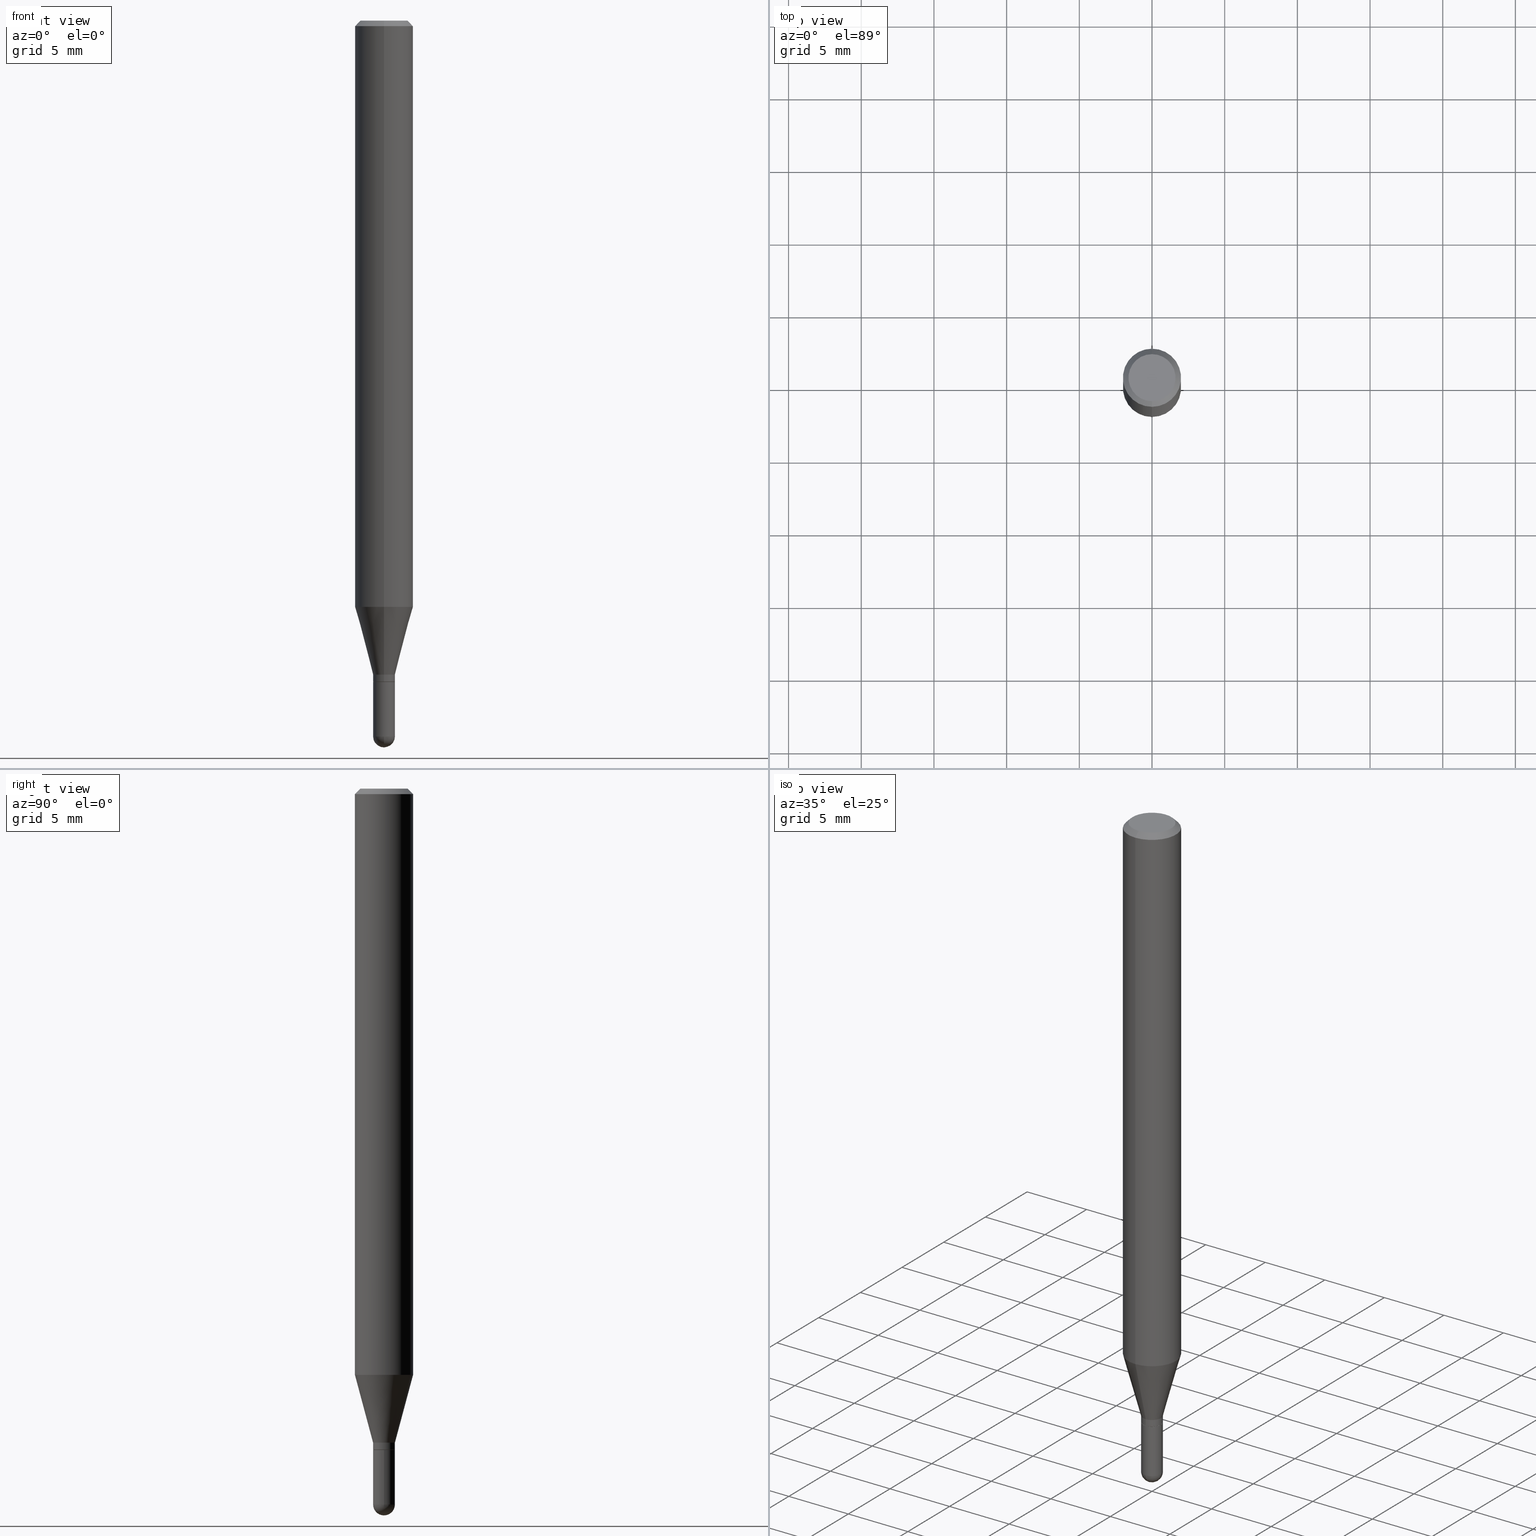
[diagram: canonical four-view strip — front | top / right | iso, engineering-drawing reading convention]
A machine part, canonical four-view strip (front | top / right | iso — engineering-drawing reading convention). The complete STEP part file that produces these views, byte-faithful:
ISO-10303-21;
HEADER;
FILE_DESCRIPTION (( 'STEP AP203' ),
    '1' );
FILE_NAME ('03020.STEP',
    '2024-03-08T18:00:56',
    ( '' ),
    ( '' ),
    'SwSTEP 2.0',
    'SolidWorks 2023',
    '' );
FILE_SCHEMA (( 'CONFIG_CONTROL_DESIGN' ));
ENDSEC;

DATA;
#1 = EDGE_CURVE ( 'NONE', #158, #68, #137, .T. ) ;
#2 = ADVANCED_FACE ( 'NONE', ( #413 ), #448, .F. ) ;
#3 = AXIS2_PLACEMENT_3D ( 'NONE', #168, #127, #38 ) ;
#4 = AXIS2_PLACEMENT_3D ( 'NONE', #455, #98, #254 ) ;
#5 = LOCAL_TIME ( 13, 0, 56.00000000000000000, #298 ) ;
#6 = DIRECTION ( 'NONE',  ( -2.445468806185136597E-29, 3.491481338843145583E-15, 1.000000000000000000 ) ) ;
#7 = PERSON_AND_ORGANIZATION_ROLE ( 'creator' ) ;
#8 = ORIENTED_EDGE ( 'NONE', *, *, #415, .T. ) ;
#9 = FACE_OUTER_BOUND ( 'NONE', #244, .T. ) ;
#10 = AXIS2_PLACEMENT_3D ( 'NONE', #186, #64, #511 ) ;
#11 = SECURITY_CLASSIFICATION ( '', '', #246 ) ;
#12 = DATE_TIME_ROLE ( 'classification_date' ) ;
#13 = ADVANCED_FACE ( 'NONE', ( #145 ), #91, .T. ) ;
#14 = PERSON_AND_ORGANIZATION_ROLE ( 'design_supplier' ) ;
#15 = DIRECTION ( 'NONE',  ( -1.000000000000000000, 6.982962677686265922E-15, -4.883557194083112901E-29 ) ) ;
#16 = EDGE_LOOP ( 'NONE', ( #138, #51, #25, #512 ) ) ;
#17 = DIRECTION ( 'NONE',  ( -2.445486363114738978E-29, 3.491456196320676645E-15, 1.000000000000000000 ) ) ;
#18 = ORIENTED_EDGE ( 'NONE', *, *, #146, .F. ) ;
#19 = CC_DESIGN_PERSON_AND_ORGANIZATION_ASSIGNMENT ( #369, #7, ( #433 ) ) ;
#20 = CIRCLE ( 'NONE', #280, 0.02954999999999998253 ) ;
#21 = ORGANIZATION ( 'UNSPECIFIED', 'UNSPECIFIED', '' ) ;
#22 = LINE ( 'NONE', #184, #72 ) ;
#23 = CYLINDRICAL_SURFACE ( 'NONE', #175, 0.02954999999999992008 ) ;
#24 = DIRECTION ( 'NONE',  ( -2.445486363114738978E-29, 3.491456196320676645E-15, 1.000000000000000000 ) ) ;
#25 = ORIENTED_EDGE ( 'NONE', *, *, #1, .T. ) ;
#26 = MECHANICAL_CONTEXT ( 'NONE', #209, 'mechanical' ) ;
#27 = FACE_OUTER_BOUND ( 'NONE', #405, .T. ) ;
#28 = ORIENTED_EDGE ( 'NONE', *, *, #146, .T. ) ;
#29 = PERSON_AND_ORGANIZATION ( #494, #21 ) ;
#30 = AXIS2_PLACEMENT_3D ( 'NONE', #71, #6, #332 ) ;
#31 = LINE ( 'NONE', #466, #431 ) ;
#32 = ORIENTED_EDGE ( 'NONE', *, *, #234, .T. ) ;
#33 = ORIENTED_EDGE ( 'NONE', *, *, #314, .F. ) ;
#34 = EDGE_CURVE ( 'NONE', #316, #68, #443, .T. ) ;
#35 = CYLINDRICAL_SURFACE ( 'NONE', #204, 0.02954999999999992008 ) ;
#36 = MANIFOLD_SOLID_BREP ( 'Body-Move/Copy2[1]', #290 ) ;
#37 = VECTOR ( 'NONE', #108, 39.37007874015748143 ) ;
#38 = DIRECTION ( 'NONE',  ( 6.982962677686264344E-15, 1.000000000000000000, -3.496114991891765576E-15 ) ) ;
#39 = EDGE_CURVE ( 'NONE', #239, #109, #174, .T. ) ;
#40 = DIRECTION ( 'NONE',  ( -1.807323732225332900E-15, -0.2588190451025185190, 0.9659258262890689783 ) ) ;
#41 = CYLINDRICAL_SURFACE ( 'NONE', #247, 0.07875000000000000056 ) ;
#42 = CARTESIAN_POINT ( 'NONE',  ( 3.668229544672112864E-31, -5.237184294481020589E-17, -0.01500000000000001679 ) ) ;
#43 = ORIENTED_EDGE ( 'NONE', *, *, #380, .F. ) ;
#44 = CARTESIAN_POINT ( 'NONE',  ( 4.975360907851465623E-16, 0.06374999999999998723, -2.394024591375393642E-16 ) ) ;
#45 = PERSON_AND_ORGANIZATION ( #494, #21 ) ;
#46 = AXIS2_PLACEMENT_3D ( 'NONE', #172, #130, #452 ) ;
#47 = CALENDAR_DATE ( 2024, 8, 3 ) ;
#48 = ADVANCED_FACE ( 'NONE', ( #468 ), #113, .T. ) ;
#49 = EDGE_CURVE ( 'NONE', #316, #222, #223, .T. ) ;
#50 = PERSON_AND_ORGANIZATION ( #494, #21 ) ;
#51 = ORIENTED_EDGE ( 'NONE', *, *, #303, .T. ) ;
#52 = CIRCLE ( 'NONE', #507, 0.06374999999999998723 ) ;
#53 = EDGE_CURVE ( 'NONE', #289, #451, #490, .T. ) ;
#54 = DIRECTION ( 'NONE',  ( -2.445486363114738978E-29, 3.491456196320676251E-15, 1.000000000000000000 ) ) ;
#55 = ADVANCED_FACE ( 'NONE', ( #352 ), #237, .T. ) ;
#56 = DIRECTION ( 'NONE',  ( -2.445468806185136597E-29, 3.491481338843145583E-15, 1.000000000000000000 ) ) ;
#57 = CYLINDRICAL_SURFACE ( 'NONE', #173, 0.07875000000000000056 ) ;
#58 = AXIS2_PLACEMENT_3D ( 'NONE', #96, #206, #368 ) ;
#59 = AXIS2_PLACEMENT_3D ( 'NONE', #42, #203, #321 ) ;
#60 = LENGTH_MEASURE_WITH_UNIT ( LENGTH_MEASURE( 0.02539999999999999897 ), #110 );
#61 = DIRECTION ( 'NONE',  ( 6.982962677686265922E-15, 1.000000000000000000, 0.000000000000000000 ) ) ;
#62 = ORIENTED_EDGE ( 'NONE', *, *, #214, .T. ) ;
#63 = EDGE_CURVE ( 'NONE', #269, #316, #79, .T. ) ;
#64 = DIRECTION ( 'NONE',  ( -2.445468806185136597E-29, 3.491481338843145583E-15, 1.000000000000000000 ) ) ;
#65 = ORIENTED_EDGE ( 'NONE', *, *, #410, .T. ) ;
#66 = CARTESIAN_POINT ( 'NONE',  ( 0.000000000000000000, 0.000000000000000000, 0.000000000000000000 ) ) ;
#67 = CARTESIAN_POINT ( 'NONE',  ( 0.02954999999999999988, -6.718395679235450664E-15, -1.938949999999999729 ) ) ;
#68 = VERTEX_POINT ( 'NONE', #363 ) ;
#69 = DIRECTION ( 'NONE',  ( -2.445468806185136597E-29, 3.491481338843145583E-15, 1.000000000000000000 ) ) ;
#70 = EDGE_CURVE ( 'NONE', #451, #484, #84, .T. ) ;
#71 = CARTESIAN_POINT ( 'NONE',  ( 0.000000000000000000, 0.000000000000000000, 0.000000000000000000 ) ) ;
#72 = VECTOR ( 'NONE', #346, 39.37007874015748143 ) ;
#73 = LINE ( 'NONE', #393, #37 ) ;
#74 = ORIENTED_EDGE ( 'NONE', *, *, #70, .T. ) ;
#75 = CARTESIAN_POINT ( 'NONE',  ( 4.113828125292592034E-46, -5.873371823000914863E-32, -1.682212662209630348E-17 ) ) ;
#76 = DIRECTION ( 'NONE',  ( -2.445486363114738978E-29, 3.491456196320676251E-15, 1.000000000000000000 ) ) ;
#77 = FACE_OUTER_BOUND ( 'NONE', #312, .T. ) ;
#78 = AXIS2_PLACEMENT_3D ( 'NONE', #115, #505, #459 ) ;
#79 = LINE ( 'NONE', #437, #454 ) ;
#80 = CC_DESIGN_APPROVAL ( #124, ( #11 ) ) ;
#81 = ADVANCED_FACE ( 'NONE', ( #395 ), #198, .T. ) ;
#82 = CARTESIAN_POINT ( 'NONE',  ( 4.332179092257759674E-29, -6.185114651782077794E-15, -1.771499999999999853 ) ) ;
#83 = PERSON_AND_ORGANIZATION ( #494, #21 ) ;
#84 = LINE ( 'NONE', #243, #229 ) ;
#85 = CALENDAR_DATE ( 2024, 8, 3 ) ;
#86 = ORIENTED_EDGE ( 'NONE', *, *, #106, .T. ) ;
#87 = PERSON_AND_ORGANIZATION_ROLE ( 'creator' ) ;
#88 = CARTESIAN_POINT ( 'NONE',  ( 3.883146467924801368E-29, -5.544024289462241926E-15, -1.587883100267612813 ) ) ;
#89 = VERTEX_POINT ( 'NONE', #286 ) ;
#90 = LOCAL_TIME ( 13, 0, 56.00000000000000000, #438 ) ;
#91 = SPHERICAL_SURFACE ( 'NONE', #341, 0.02954999999999998253 ) ;
#92 = VERTEX_POINT ( 'NONE', #399 ) ;
#93 = ORIENTED_EDGE ( 'NONE', *, *, #314, .T. ) ;
#94 = ORIENTED_EDGE ( 'NONE', *, *, #49, .T. ) ;
#95 = ADVANCED_FACE ( 'NONE', ( #199 ), #304, .F. ) ;
#96 = CARTESIAN_POINT ( 'NONE',  ( 4.741641741752670047E-29, -6.769807741949916508E-15, -1.938949999999999729 ) ) ;
#97 = AXIS2_PLACEMENT_3D ( 'NONE', #122, #394, #235 ) ;
#98 = DIRECTION ( 'NONE',  ( -2.445486363114738978E-29, 3.491456196320676645E-15, 1.000000000000000000 ) ) ;
#99 = PLANE ( 'NONE',  #392 ) ;
#100 = CARTESIAN_POINT ( 'NONE',  ( 4.380599722247432537E-29, -6.254245484469228584E-15, -1.791300000000000336 ) ) ;
#101 = CARTESIAN_POINT ( 'NONE',  ( 4.332179092257759674E-29, -6.185114651782077794E-15, -1.771499999999999853 ) ) ;
#102 = DATE_AND_TIME ( #458, #344 ) ;
#103 = EDGE_CURVE ( 'NONE', #68, #316, #291, .T. ) ;
#104 = LINE ( 'NONE', #262, #141 ) ;
#105 = ORIENTED_EDGE ( 'NONE', *, *, #303, .F. ) ;
#106 = EDGE_CURVE ( 'NONE', #222, #489, #167, .T. ) ;
#107 = AXIS2_PLACEMENT_3D ( 'NONE', #190, #342, #457 ) ;
#108 = DIRECTION ( 'NONE',  ( -2.445486363114738978E-29, 3.491456196320676251E-15, 1.000000000000000000 ) ) ;
#109 = VERTEX_POINT ( 'NONE', #288 ) ;
#110 =( LENGTH_UNIT ( ) NAMED_UNIT ( * ) SI_UNIT ( $, .METRE. ) );
#111 = DIRECTION ( 'NONE',  ( -4.851104656540965064E-15, -0.7071067811865501263, -0.7071067811865449082 ) ) ;
#112 = ORIENTED_EDGE ( 'NONE', *, *, #195, .F. ) ;
#113 = CYLINDRICAL_SURFACE ( 'NONE', #360, 0.02954999999999999988 ) ;
#114 = CC_DESIGN_PERSON_AND_ORGANIZATION_ASSIGNMENT ( #506, #388, ( #502 ) ) ;
#115 = CARTESIAN_POINT ( 'NONE',  ( 4.379376979065875238E-29, -6.252499756371067645E-15, -1.790800000000000169 ) ) ;
#116 = ORIENTED_EDGE ( 'NONE', *, *, #119, .F. ) ;
#117 = DIRECTION ( 'NONE',  ( -7.105427357601001070E-15, -1.000000000000000000, 0.000000000000000000 ) ) ;
#118 = AXIS2_PLACEMENT_3D ( 'NONE', #88, #17, #260 ) ;
#119 = EDGE_CURVE ( 'NONE', #420, #481, #257, .T. ) ;
#120 = DIRECTION ( 'NONE',  ( -1.000000000000000000, 7.105427357601001070E-15, -4.926315508542082329E-29 ) ) ;
#121 = ORIENTED_EDGE ( 'NONE', *, *, #53, .T. ) ;
#122 = CARTESIAN_POINT ( 'NONE',  ( 4.380599722247432537E-29, -6.254245484469228584E-15, -1.791300000000000336 ) ) ;
#123 = AXIS2_PLACEMENT_3D ( 'NONE', #82, #432, #478 ) ;
#124 = APPROVAL ( #134, 'UNSPECIFIED' ) ;
#125 = EDGE_LOOP ( 'NONE', ( #439, #383, #112, #116 ) ) ;
#126 = DIRECTION ( 'NONE',  ( -6.982962677686264344E-15, -1.000000000000000000, 3.491456196320676251E-15 ) ) ;
#127 = DIRECTION ( 'NONE',  ( 2.445486363114738978E-29, -3.491456196320676645E-15, -1.000000000000000000 ) ) ;
#128 = EDGE_CURVE ( 'NONE', #444, #239, #343, .T. ) ;
#129 = CALENDAR_DATE ( 2024, 8, 3 ) ;
#130 = DIRECTION ( 'NONE',  ( 2.445486363114738978E-29, -3.491456196320676251E-15, -1.000000000000000000 ) ) ;
#131 = VECTOR ( 'NONE', #450, 39.37007874015748143 ) ;
#132 = CONICAL_SURFACE ( 'NONE', #264, 0.02904999999999999943, 0.7853981633969275844 ) ;
#133 = ORIENTED_EDGE ( 'NONE', *, *, #103, .T. ) ;
#134 = APPROVAL_STATUS ( 'not_yet_approved' ) ;
#135 = CARTESIAN_POINT ( 'NONE',  ( 0.02954999999999999988, -2.063465471256291914E-16, 1.440910237247699070E-30 ) ) ;
#136 = ORIENTED_EDGE ( 'NONE', *, *, #195, .T. ) ;
#137 = LINE ( 'NONE', #488, #445 ) ;
#138 = ORIENTED_EDGE ( 'NONE', *, *, #63, .F. ) ;
#139 = DIRECTION ( 'NONE',  ( -6.982962677686265922E-15, -1.000000000000000000, 3.491456196320676251E-15 ) ) ;
#140 = CLOSED_SHELL ( 'NONE', ( #327, #240, #81, #423, #379, #55, #249, #155, #95, #2, #164, #475 ) ) ;
#141 = VECTOR ( 'NONE', #348, 39.37007874015748143 ) ;
#142 = CC_DESIGN_APPROVAL ( #357, ( #447 ) ) ;
#143 = CARTESIAN_POINT ( 'NONE',  ( 0.000000000000000000, 0.000000000000000000, 0.000000000000000000 ) ) ;
#144 = FACE_OUTER_BOUND ( 'NONE', #356, .T. ) ;
#145 = FACE_OUTER_BOUND ( 'NONE', #125, .T. ) ;
#146 = EDGE_CURVE ( 'NONE', #489, #222, #418, .T. ) ;
#147 = COORDINATED_UNIVERSAL_TIME_OFFSET ( 5, 0, .BEHIND. ) ;
#148 = CARTESIAN_POINT ( 'NONE',  ( -2.063465471255836346E-16, -0.02955000000000600202, -1.790800000000000169 ) ) ;
#149 = CARTESIAN_POINT ( 'NONE',  ( 2.099653784171542487E-16, 0.02954999999999400814, -1.771499999999999853 ) ) ;
#150 = DIRECTION ( 'NONE',  ( 0.000000000000000000, 0.000000000000000000, 1.000000000000000000 ) ) ;
#151 = CARTESIAN_POINT ( 'NONE',  ( 4.380599722247432537E-29, -6.254245484469228584E-15, -1.791300000000000336 ) ) ;
#152 = EDGE_LOOP ( 'NONE', ( #406, #86, #62, #250 ) ) ;
#153 = CARTESIAN_POINT ( 'NONE',  ( 4.380599722247432537E-29, -6.254245484469228584E-15, -1.791300000000000336 ) ) ;
#154 = ORIENTED_EDGE ( 'NONE', *, *, #278, .T. ) ;
#155 = ADVANCED_FACE ( 'NONE', ( #221 ), #230, .T. ) ;
#156 = PRODUCT_DEFINITION_SHAPE ( 'NONE', 'NONE',  #433 ) ;
#157 = DIRECTION ( 'NONE',  ( -2.445468806185136597E-29, 3.491481338843145583E-15, 1.000000000000000000 ) ) ;
#158 = VERTEX_POINT ( 'NONE', #148 ) ;
#159 = DIRECTION ( 'NONE',  ( -2.445486363114738978E-29, 3.491456196320676645E-15, 1.000000000000000000 ) ) ;
#160 = EDGE_CURVE ( 'NONE', #213, #420, #20, .T. ) ;
#161 = DIRECTION ( 'NONE',  ( -2.445486363114738978E-29, 3.491456196320676645E-15, 1.000000000000000000 ) ) ;
#162 = CIRCLE ( 'NONE', #10, 0.02954999999999999988 ) ;
#163 = ORIENTED_EDGE ( 'NONE', *, *, #284, .F. ) ;
#164 = ADVANCED_FACE ( 'NONE', ( #27 ), #132, .T. ) ;
#165 = ORIENTED_EDGE ( 'NONE', *, *, #39, .F. ) ;
#166 = EDGE_LOOP ( 'NONE', ( #163, #177 ) ) ;
#167 = CIRCLE ( 'NONE', #118, 0.07875000000000000056 ) ;
#168 = CARTESIAN_POINT ( 'NONE',  ( 3.668229544672112864E-31, -5.237184294481020589E-17, -0.01500000000000001679 ) ) ;
#169 = APPROVAL_PERSON_ORGANIZATION ( #45, #124, #170 ) ;
#170 = APPROVAL_ROLE ( '' ) ;
#171 = PERSON_AND_ORGANIZATION_ROLE ( 'classification_officer' ) ;
#172 = CARTESIAN_POINT ( 'NONE',  ( 4.451638707024993845E-16, 0.06374999999999998723, -2.309913958264912248E-16 ) ) ;
#173 = AXIS2_PLACEMENT_3D ( 'NONE', #508, #215, #375 ) ;
#174 = LINE ( 'NONE', #135, #131 ) ;
#175 = AXIS2_PLACEMENT_3D ( 'NONE', #143, #421, #355 ) ;
#176 = EDGE_LOOP ( 'NONE', ( #279, #194, #226, #491 ) ) ;
#177 = ORIENTED_EDGE ( 'NONE', *, *, #410, .F. ) ;
#178 = CARTESIAN_POINT ( 'NONE',  ( 4.380599722247431976E-29, -6.254245484469227795E-15, -1.791300000000000114 ) ) ;
#179 = DIRECTION ( 'NONE',  ( -1.000000000000000000, 6.982962677686265922E-15, -4.876176775795935793E-29 ) ) ;
#180 = DIRECTION ( 'NONE',  ( 6.982962677686265922E-15, 1.000000000000000000, 0.000000000000000000 ) ) ;
#181 = AXIS2_PLACEMENT_3D ( 'NONE', #153, #319, #389 ) ;
#182 = AXIS2_PLACEMENT_3D ( 'NONE', #306, #310, #465 ) ;
#183 = DIRECTION ( 'NONE',  ( 1.000000000000000000, 0.000000000000000000, 0.000000000000000000 ) ) ;
#184 = CARTESIAN_POINT ( 'NONE',  ( -0.02954999999999999988, 2.099653784171096041E-16, -1.453545319170324550E-30 ) ) ;
#185 =( NAMED_UNIT ( * ) SI_UNIT ( $, .STERADIAN. ) SOLID_ANGLE_UNIT ( ) );
#186 = CARTESIAN_POINT ( 'NONE',  ( 4.741641741752670047E-29, -6.769807741949916508E-15, -1.938949999999999729 ) ) ;
#187 = ORIENTED_EDGE ( 'NONE', *, *, #335, .T. ) ;
#188 = ADVANCED_BREP_SHAPE_REPRESENTATION ( '03020', ( #36, #207, #493 ), #326 ) ;
#189 = ADVANCED_FACE ( 'NONE', ( #144 ), #268, .T. ) ;
#190 = CARTESIAN_POINT ( 'NONE',  ( 4.379376979065875238E-29, -6.252499756371067645E-15, -1.790800000000000169 ) ) ;
#191 = CIRCLE ( 'NONE', #480, 0.07875000000000000056 ) ;
#192 = CARTESIAN_POINT ( 'NONE',  ( -0.02954999999999999988, -6.302083753692712485E-15, -1.938949999999999729 ) ) ;
#193 = DIRECTION ( 'NONE',  ( -6.982962677686266711E-15, -1.000000000000000000, 0.000000000000000000 ) ) ;
#194 = ORIENTED_EDGE ( 'NONE', *, *, #34, .T. ) ;
#195 = EDGE_CURVE ( 'NONE', #481, #444, #162, .T. ) ;
#196 = DIRECTION ( 'NONE',  ( -2.445486363114738978E-29, 3.491456196320676645E-15, 1.000000000000000000 ) ) ;
#197 = CARTESIAN_POINT ( 'NONE',  ( 3.668229544672112864E-31, -5.237184294481020589E-17, -0.01500000000000001679 ) ) ;
#198 = CONICAL_SURFACE ( 'NONE', #3, 0.07875000000000000056, 0.7853981633974485010 ) ;
#199 = FACE_OUTER_BOUND ( 'NONE', #256, .T. ) ;
#200 = CARTESIAN_POINT ( 'NONE',  ( 2.081890215777515068E-16, 0.02904999999999374402, -1.791300000000000336 ) ) ;
#201 = CARTESIAN_POINT ( 'NONE',  ( -2.028550657867422299E-16, -0.02905000000000625138, -1.791300000000000336 ) ) ;
#202 = EDGE_CURVE ( 'NONE', #451, #289, #52, .T. ) ;
#203 = DIRECTION ( 'NONE',  ( -2.445486363114738978E-29, 3.491456196320676645E-15, 1.000000000000000000 ) ) ;
#204 = AXIS2_PLACEMENT_3D ( 'NONE', #477, #196, #329 ) ;
#205 = APPROVAL_PERSON_ORGANIZATION ( #29, #347, #503 ) ;
#206 = DIRECTION ( 'NONE',  ( -2.445468806185136597E-29, 3.491481338843145583E-15, 1.000000000000000000 ) ) ;
#207 = MANIFOLD_SOLID_BREP ( 'Body-Move/Copy2[2]', #140 ) ;
#208 = DESIGN_CONTEXT ( 'detailed design', #302, 'design' ) ;
#209 = APPLICATION_CONTEXT ( 'configuration controlled 3d designs of mechanical parts and assemblies' ) ;
#210 = AXIS2_PLACEMENT_3D ( 'NONE', #101, #219, #377 ) ;
#211 = AXIS2_PLACEMENT_3D ( 'NONE', #336, #487, #374 ) ;
#212 = ORIENTED_EDGE ( 'NONE', *, *, #128, .F. ) ;
#213 = VERTEX_POINT ( 'NONE', #350 ) ;
#214 = EDGE_CURVE ( 'NONE', #489, #320, #73, .T. ) ;
#215 = DIRECTION ( 'NONE',  ( -2.445486363114738978E-29, 3.491456196320676645E-15, 1.000000000000000000 ) ) ;
#216 = CC_DESIGN_DATE_AND_TIME_ASSIGNMENT ( #403, #12, ( #11 ) ) ;
#217 = AXIS2_PLACEMENT_3D ( 'NONE', #308, #370, #258 ) ;
#218 = UNCERTAINTY_MEASURE_WITH_UNIT (LENGTH_MEASURE( 1.000000000000000082E-05 ), #456, 'distance_accuracy_value', 'NONE');
#219 = DIRECTION ( 'NONE',  ( -2.445486363114738978E-29, 3.491456196320676645E-15, 1.000000000000000000 ) ) ;
#220 = CIRCLE ( 'NONE', #59, 0.07875000000000000056 ) ;
#221 = FACE_OUTER_BOUND ( 'NONE', #323, .T. ) ;
#222 = VERTEX_POINT ( 'NONE', #315 ) ;
#223 = LINE ( 'NONE', #149, #417 ) ;
#224 = FACE_OUTER_BOUND ( 'NONE', #16, .T. ) ;
#225 = CARTESIAN_POINT ( 'NONE',  ( 4.113828125292592034E-46, -5.873371823000914863E-32, -1.682212662209630348E-17 ) ) ;
#226 = ORIENTED_EDGE ( 'NONE', *, *, #380, .T. ) ;
#227 = CARTESIAN_POINT ( 'NONE',  ( 2.099653784171501564E-16, 0.02954999999999330038, -1.790800000000000169 ) ) ;
#228 = EDGE_LOOP ( 'NONE', ( #497, #272, #301, #483 ) ) ;
#229 = VECTOR ( 'NONE', #236, 39.37007874015748143 ) ;
#230 = CONICAL_SURFACE ( 'NONE', #492, 0.07875000000000000056, 0.7853981633974485010 ) ;
#231 = FACE_OUTER_BOUND ( 'NONE', #409, .T. ) ;
#232 = DIRECTION ( 'NONE',  ( 6.982962677686264344E-15, 1.000000000000000000, -3.496114991891765576E-15 ) ) ;
#233 = ORIENTED_EDGE ( 'NONE', *, *, #476, .T. ) ;
#234 = EDGE_CURVE ( 'NONE', #158, #269, #337, .T. ) ;
#235 = DIRECTION ( 'NONE',  ( -6.982962677686266711E-15, -1.000000000000000000, 0.000000000000000000 ) ) ;
#236 = DIRECTION ( 'NONE',  ( 4.937700262164548831E-15, 0.7071067811865452413, -0.7071067811865497932 ) ) ;
#237 = CONICAL_SURFACE ( 'NONE', #210, 0.02955000000000019417, 0.2617993877991506291 ) ;
#238 = CONICAL_SURFACE ( 'NONE', #404, 0.02904999999999999943, 0.7853981633969275844 ) ;
#239 = VERTEX_POINT ( 'NONE', #67 ) ;
#240 = ADVANCED_FACE ( 'NONE', ( #501 ), #238, .T. ) ;
#241 = LINE ( 'NONE', #397, #293 ) ;
#242 = CALENDAR_DATE ( 2024, 8, 3 ) ;
#243 = CARTESIAN_POINT ( 'NONE',  ( 5.499083108677937401E-16, 0.07874999999999994504, -0.01500000000000029261 ) ) ;
#244 = EDGE_LOOP ( 'NONE', ( #467, #136, #263, #428, #408 ) ) ;
#245 = CARTESIAN_POINT ( 'NONE',  ( -2.099653784170621245E-16, -0.02955000000000676530, -1.938949999999999729 ) ) ;
#246 = SECURITY_CLASSIFICATION_LEVEL ( 'unclassified' ) ;
#247 = AXIS2_PLACEMENT_3D ( 'NONE', #482, #161, #126 ) ;
#248 = APPROVAL_DATE_TIME ( #287, #124 ) ;
#249 = ADVANCED_FACE ( 'NONE', ( #416 ), #57, .T. ) ;
#250 = ORIENTED_EDGE ( 'NONE', *, *, #472, .F. ) ;
#251 = DATE_TIME_ROLE ( 'creation_date' ) ;
#252 = CC_DESIGN_DATE_AND_TIME_ASSIGNMENT ( #333, #251, ( #433 ) ) ;
#253 = ORIENTED_EDGE ( 'NONE', *, *, #292, .F. ) ;
#254 = DIRECTION ( 'NONE',  ( -6.982962677686265133E-15, -1.000000000000000000, 0.000000000000000000 ) ) ;
#255 = DIRECTION ( 'NONE',  ( 6.982962677686265922E-15, 1.000000000000000000, 0.000000000000000000 ) ) ;
#256 = EDGE_LOOP ( 'NONE', ( #496, #121 ) ) ;
#257 = CIRCLE ( 'NONE', #58, 0.02954999999999999988 ) ;
#258 = DIRECTION ( 'NONE',  ( -6.982962677686265133E-15, -1.000000000000000000, 0.000000000000000000 ) ) ;
#259 = CC_DESIGN_PERSON_AND_ORGANIZATION_ASSIGNMENT ( #50, #14, ( #447 ) ) ;
#260 = DIRECTION ( 'NONE',  ( -6.982962677686264344E-15, -1.000000000000000000, 3.469013325287953293E-15 ) ) ;
#261 = DIRECTION ( 'NONE',  ( -2.445486363114738978E-29, 3.491456196320676645E-15, 1.000000000000000000 ) ) ;
#262 = CARTESIAN_POINT ( 'NONE',  ( 2.064126647383528571E-16, 0.02904999999999374402, -1.791300000000000336 ) ) ;
#263 = ORIENTED_EDGE ( 'NONE', *, *, #128, .T. ) ;
#264 = AXIS2_PLACEMENT_3D ( 'NONE', #151, #424, #193 ) ;
#265 = LOCAL_TIME ( 13, 0, 56.00000000000000000, #495 ) ;
#266 = DIRECTION ( 'NONE',  ( -6.982962677686266711E-15, -1.000000000000000000, 0.000000000000000000 ) ) ;
#267 = CARTESIAN_POINT ( 'NONE',  ( -5.499083108677547901E-16, -0.07875000000000556555, -1.587883100267612591 ) ) ;
#268 = SPHERICAL_SURFACE ( 'NONE', #361, 0.02954999999999998253 ) ;
#269 = VERTEX_POINT ( 'NONE', #227 ) ;
#270 = CARTESIAN_POINT ( 'NONE',  ( 0.000000000000000000, 0.000000000000000000, 0.000000000000000000 ) ) ;
#271 = DIRECTION ( 'NONE',  ( 2.445486363114738978E-29, -3.491456196320676645E-15, -1.000000000000000000 ) ) ;
#272 = ORIENTED_EDGE ( 'NONE', *, *, #309, .T. ) ;
#273 = AXIS2_PLACEMENT_3D ( 'NONE', #178, #54, #139 ) ;
#274 = AXIS2_PLACEMENT_3D ( 'NONE', #275, #120, #117 ) ;
#275 = CARTESIAN_POINT ( 'NONE',  ( 4.739114725368145232E-29, -6.773426573241397832E-15, -1.938950000000000173 ) ) ;
#276 = ORIENTED_EDGE ( 'NONE', *, *, #1, .F. ) ;
#277 = CYLINDRICAL_SURFACE ( 'NONE', #30, 0.02954999999999999988 ) ;
#278 = EDGE_CURVE ( 'NONE', #481, #89, #22, .T. ) ;
#279 = ORIENTED_EDGE ( 'NONE', *, *, #49, .F. ) ;
#280 = AXIS2_PLACEMENT_3D ( 'NONE', #463, #422, #180 ) ;
#281 = DIRECTION ( 'NONE',  ( -2.445486363114738978E-29, 3.491456196320676645E-15, 1.000000000000000000 ) ) ;
#282 = PRODUCT_RELATED_PRODUCT_CATEGORY ( 'detail', '', ( #502 ) ) ;
#283 = ORIENTED_EDGE ( 'NONE', *, *, #119, .T. ) ;
#284 = EDGE_CURVE ( 'NONE', #92, #387, #462, .T. ) ;
#285 = CARTESIAN_POINT ( 'NONE',  ( 4.741641741752670047E-29, -6.769807741949916508E-15, -1.938949999999999729 ) ) ;
#286 = CARTESIAN_POINT ( 'NONE',  ( -0.02954999999999999988, -6.302083753692712485E-15, -1.791300000000000114 ) ) ;
#287 = DATE_AND_TIME ( #129, #5 ) ;
#288 = CARTESIAN_POINT ( 'NONE',  ( 0.02954999999999999988, -6.460637069395355998E-15, -1.791300000000000114 ) ) ;
#289 = VERTEX_POINT ( 'NONE', #504 ) ;
#290 = CLOSED_SHELL ( 'NONE', ( #48, #13, #485, #189, #364 ) ) ;
#291 = CIRCLE ( 'NONE', #4, 0.02955000000000019417 ) ;
#292 = EDGE_CURVE ( 'NONE', #109, #89, #317, .T. ) ;
#293 = VECTOR ( 'NONE', #40, 39.37007874015748854 ) ;
#294 = COORDINATED_UNIVERSAL_TIME_OFFSET ( 5, 0, .BEHIND. ) ;
#295 = CARTESIAN_POINT ( 'NONE',  ( 3.883146467924801368E-29, -5.544024289462241926E-15, -1.587883100267612813 ) ) ;
#296 = CC_DESIGN_APPROVAL ( #347, ( #433 ) ) ;
#297 = ORIENTED_EDGE ( 'NONE', *, *, #415, .F. ) ;
#298 = COORDINATED_UNIVERSAL_TIME_OFFSET ( 5, 0, .BEHIND. ) ;
#299 = DIRECTION ( 'NONE',  ( -6.982962677686264344E-15, -1.000000000000000000, 3.469013325287953293E-15 ) ) ;
#300 = DIRECTION ( 'NONE',  ( -2.445486363114738978E-29, 3.491456196320676251E-15, 1.000000000000000000 ) ) ;
#301 = ORIENTED_EDGE ( 'NONE', *, *, #234, .F. ) ;
#302 = APPLICATION_CONTEXT ( 'configuration controlled 3d designs of mechanical parts and assemblies' ) ;
#303 = EDGE_CURVE ( 'NONE', #269, #158, #366, .T. ) ;
#304 = PLANE ( 'NONE',  #46 ) ;
#305 = AXIS2_PLACEMENT_3D ( 'NONE', #295, #412, #299 ) ;
#306 = CARTESIAN_POINT ( 'NONE',  ( 4.380568272519435501E-29, -6.254290522269726388E-15, -1.791300000000000114 ) ) ;
#307 = DIRECTION ( 'NONE',  ( -1.000000000000000000, 6.982962677686265922E-15, -4.883557194083112901E-29 ) ) ;
#308 = CARTESIAN_POINT ( 'NONE',  ( 4.332179092257759674E-29, -6.185114651782077794E-15, -1.771499999999999853 ) ) ;
#309 = EDGE_CURVE ( 'NONE', #387, #269, #104, .T. ) ;
#310 = DIRECTION ( 'NONE',  ( -2.445468806185136597E-29, 3.491481338843145583E-15, 1.000000000000000000 ) ) ;
#311 = DIRECTION ( 'NONE',  ( 1.000000000000000000, -6.982962677686261977E-15, 0.000000000000000000 ) ) ;
#312 = EDGE_LOOP ( 'NONE', ( #133, #94, #18, #43 ) ) ;
#313 = DIRECTION ( 'NONE',  ( 2.438088387897960049E-29, -3.491481338843145188E-15, -1.000000000000000000 ) ) ;
#314 = EDGE_CURVE ( 'NONE', #289, #320, #31, .T. ) ;
#315 = CARTESIAN_POINT ( 'NONE',  ( 5.595524044111173573E-16, 0.07874999999999443556, -1.587883100267613035 ) ) ;
#316 = VERTEX_POINT ( 'NONE', #322 ) ;
#317 = CIRCLE ( 'NONE', #353, 0.02954999999999999988 ) ;
#318 = APPLICATION_PROTOCOL_DEFINITION ( 'international standard', 'config_control_design', 1994, #302 ) ;
#319 = DIRECTION ( 'NONE',  ( -2.445486363114738978E-29, 3.491456196320676645E-15, 1.000000000000000000 ) ) ;
#320 = VERTEX_POINT ( 'NONE', #470 ) ;
#321 = DIRECTION ( 'NONE',  ( -6.982962677686264344E-15, -1.000000000000000000, 3.496114991891765576E-15 ) ) ;
#322 = CARTESIAN_POINT ( 'NONE',  ( 3.847588914141360372E-16, 0.02954999999999400814, -1.771499999999999853 ) ) ;
#323 = EDGE_LOOP ( 'NONE', ( #33, #471, #74, #401 ) ) ;
#324 = LINE ( 'NONE', #201, #372 ) ;
#325 = DIRECTION ( 'NONE',  ( -6.982962677686265922E-15, -1.000000000000000000, 3.491456196320676645E-15 ) ) ;
#326 =( GEOMETRIC_REPRESENTATION_CONTEXT ( 3 ) GLOBAL_UNCERTAINTY_ASSIGNED_CONTEXT ( ( #218 ) ) GLOBAL_UNIT_ASSIGNED_CONTEXT ( ( #456, #414, #185 ) ) REPRESENTATION_CONTEXT ( 'NONE', 'WORKASPACE' ) );
#327 = ADVANCED_FACE ( 'NONE', ( #231 ), #35, .T. ) ;
#328 = FACE_OUTER_BOUND ( 'NONE', #373, .T. ) ;
#329 = DIRECTION ( 'NONE',  ( -6.982962677686265922E-15, -1.000000000000000000, 3.491456196320676251E-15 ) ) ;
#330 = DIRECTION ( 'NONE',  ( -2.445486363114738978E-29, 3.491456196320676251E-15, 1.000000000000000000 ) ) ;
#331 = ORIENTED_EDGE ( 'NONE', *, *, #309, .F. ) ;
#332 = DIRECTION ( 'NONE',  ( 1.000000000000000000, -6.982962677686266711E-15, 4.876176775795935793E-29 ) ) ;
#333 = DATE_AND_TIME ( #47, #500 ) ;
#334 = DATE_AND_TIME ( #85, #90 ) ;
#335 = EDGE_CURVE ( 'NONE', #92, #158, #324, .T. ) ;
#336 = CARTESIAN_POINT ( 'NONE',  ( 4.741641741752670047E-29, -6.769807741949916508E-15, -1.938949999999999729 ) ) ;
#337 = CIRCLE ( 'NONE', #107, 0.02954999999999964946 ) ;
#338 = ORIENTED_EDGE ( 'NONE', *, *, #292, .T. ) ;
#339 = EDGE_CURVE ( 'NONE', #213, #444, #499, .T. ) ;
#340 = ORIENTED_EDGE ( 'NONE', *, *, #53, .F. ) ;
#341 = AXIS2_PLACEMENT_3D ( 'NONE', #453, #15, #255 ) ;
#342 = DIRECTION ( 'NONE',  ( -2.445486363114738978E-29, 3.491456196320676645E-15, 1.000000000000000000 ) ) ;
#343 = CIRCLE ( 'NONE', #211, 0.02954999999999999988 ) ;
#344 = LOCAL_TIME ( 13, 0, 56.00000000000000000, #147 ) ;
#345 = APPROVAL_STATUS ( 'not_yet_approved' ) ;
#346 = DIRECTION ( 'NONE',  ( -2.445468806185136877E-29, 3.491481338843145188E-15, 1.000000000000000000 ) ) ;
#347 = APPROVAL ( #345, 'UNSPECIFIED' ) ;
#348 = DIRECTION ( 'NONE',  ( 5.024295867785445738E-15, 0.7071067811861817543, 0.7071067811869132802 ) ) ;
#349 = EDGE_LOOP ( 'NONE', ( #283, #154, #253, #165, #509 ) ) ;
#350 = CARTESIAN_POINT ( 'NONE',  ( 4.812641836783178306E-29, -6.874790431158471975E-15, -1.968500000000000139 ) ) ;
#351 = ORIENTED_EDGE ( 'NONE', *, *, #339, .F. ) ;
#352 = FACE_OUTER_BOUND ( 'NONE', #176, .T. ) ;
#353 = AXIS2_PLACEMENT_3D ( 'NONE', #382, #157, #311 ) ;
#354 = CC_DESIGN_SECURITY_CLASSIFICATION ( #11, ( #447 ) ) ;
#355 = DIRECTION ( 'NONE',  ( -6.982962677686265922E-15, -1.000000000000000000, 3.491456196320676251E-15 ) ) ;
#356 = EDGE_LOOP ( 'NONE', ( #351, #407, #460, #212 ) ) ;
#357 = APPROVAL ( #367, 'UNSPECIFIED' ) ;
#358 = DIRECTION ( 'NONE',  ( 1.839019923739602682E-15, 0.2588190451025252914, 0.9659258262890670910 ) ) ;
#359 = CARTESIAN_POINT ( 'NONE',  ( 2.063465471256765230E-16, 0.02954999999999321711, -1.938949999999999729 ) ) ;
#360 = AXIS2_PLACEMENT_3D ( 'NONE', #66, #69, #430 ) ;
#361 = AXIS2_PLACEMENT_3D ( 'NONE', #427, #307, #61 ) ;
#362 = CIRCLE ( 'NONE', #182, 0.02954999999999999988 ) ;
#363 = CARTESIAN_POINT ( 'NONE',  ( -2.063465471255871845E-16, -0.02955000000000637672, -1.771499999999999853 ) ) ;
#364 = ADVANCED_FACE ( 'NONE', ( #9 ), #277, .T. ) ;
#365 = CARTESIAN_POINT ( 'NONE',  ( 5.595524044110787031E-16, 0.07875000000000000056, -2.749521754602532666E-16 ) ) ;
#366 = CIRCLE ( 'NONE', #78, 0.02954999999999964946 ) ;
#367 = APPROVAL_STATUS ( 'not_yet_approved' ) ;
#368 = DIRECTION ( 'NONE',  ( 1.000000000000000000, -6.982962677686261977E-15, 0.000000000000000000 ) ) ;
#369 = PERSON_AND_ORGANIZATION ( #494, #21 ) ;
#370 = DIRECTION ( 'NONE',  ( -2.445486363114738978E-29, 3.491456196320676645E-15, 1.000000000000000000 ) ) ;
#371 = ORIENTED_EDGE ( 'NONE', *, *, #214, .F. ) ;
#372 = VECTOR ( 'NONE', #473, 39.37007874015748143 ) ;
#373 = EDGE_LOOP ( 'NONE', ( #28, #440, #297, #371 ) ) ;
#374 = DIRECTION ( 'NONE',  ( 1.000000000000000000, -6.982962677686261977E-15, 0.000000000000000000 ) ) ;
#375 = DIRECTION ( 'NONE',  ( -6.982962677686264344E-15, -1.000000000000000000, 3.491456196320676251E-15 ) ) ;
#376 = AXIS2_PLACEMENT_3D ( 'NONE', #285, #56, #426 ) ;
#377 = DIRECTION ( 'NONE',  ( -6.982962677686265133E-15, -1.000000000000000000, 0.000000000000000000 ) ) ;
#378 = APPROVAL_PERSON_ORGANIZATION ( #436, #357, #449 ) ;
#379 = ADVANCED_FACE ( 'NONE', ( #77 ), #474, .T. ) ;
#380 = EDGE_CURVE ( 'NONE', #68, #489, #241, .T. ) ;
#381 = FACE_OUTER_BOUND ( 'NONE', #442, .T. ) ;
#382 = CARTESIAN_POINT ( 'NONE',  ( 4.380568272519435501E-29, -6.254290522269726388E-15, -1.791300000000000114 ) ) ;
#383 = ORIENTED_EDGE ( 'NONE', *, *, #339, .T. ) ;
#384 = DIMENSIONAL_EXPONENTS ( 1.000000000000000000, 0.000000000000000000, 0.000000000000000000, 0.000000000000000000, 0.000000000000000000, 0.000000000000000000, 0.000000000000000000 ) ;
#385 = APPLICATION_PROTOCOL_DEFINITION ( 'international standard', 'config_control_design', 1994, #209 ) ;
#386 = DIRECTION ( 'NONE',  ( -6.982962677686265922E-15, -1.000000000000000000, 3.491456196320676645E-15 ) ) ;
#387 = VERTEX_POINT ( 'NONE', #200 ) ;
#388 = PERSON_AND_ORGANIZATION_ROLE ( 'design_owner' ) ;
#389 = DIRECTION ( 'NONE',  ( -6.982962677686266711E-15, -1.000000000000000000, 0.000000000000000000 ) ) ;
#390 = ORIENTED_EDGE ( 'NONE', *, *, #103, .F. ) ;
#391 = CIRCLE ( 'NONE', #376, 0.02954999999999999988 ) ;
#392 = AXIS2_PLACEMENT_3D ( 'NONE', #469, #313, #179 ) ;
#393 = CARTESIAN_POINT ( 'NONE',  ( -5.499083108677933457E-16, -0.07875000000000000056, 2.749521754602532666E-16 ) ) ;
#394 = DIRECTION ( 'NONE',  ( -2.445486363114738978E-29, 3.491456196320676645E-15, 1.000000000000000000 ) ) ;
#395 = FACE_OUTER_BOUND ( 'NONE', #461, .T. ) ;
#396 = CC_DESIGN_PERSON_AND_ORGANIZATION_ASSIGNMENT ( #83, #87, ( #447 ) ) ;
#397 = CARTESIAN_POINT ( 'NONE',  ( -2.063465471255871845E-16, -0.02955000000000637672, -1.771499999999999853 ) ) ;
#398 = SHAPE_DEFINITION_REPRESENTATION ( #156, #188 ) ;
#399 = CARTESIAN_POINT ( 'NONE',  ( -2.028550657867422299E-16, -0.02905000000000625138, -1.791300000000000336 ) ) ;
#400 = LINE ( 'NONE', #365, #411 ) ;
#401 = ORIENTED_EDGE ( 'NONE', *, *, #472, .T. ) ;
#402 = EDGE_CURVE ( 'NONE', #222, #484, #400, .T. ) ;
#403 = DATE_AND_TIME ( #242, #265 ) ;
#404 = AXIS2_PLACEMENT_3D ( 'NONE', #100, #261, #266 ) ;
#405 = EDGE_LOOP ( 'NONE', ( #331, #65, #187, #105 ) ) ;
#406 = ORIENTED_EDGE ( 'NONE', *, *, #402, .F. ) ;
#407 = ORIENTED_EDGE ( 'NONE', *, *, #160, .T. ) ;
#408 = ORIENTED_EDGE ( 'NONE', *, *, #476, .F. ) ;
#409 = EDGE_LOOP ( 'NONE', ( #32, #434, #390, #276 ) ) ;
#410 = EDGE_CURVE ( 'NONE', #387, #92, #446, .T. ) ;
#411 = VECTOR ( 'NONE', #330, 39.37007874015748143 ) ;
#412 = DIRECTION ( 'NONE',  ( -2.445486363114738978E-29, 3.491456196320676645E-15, 1.000000000000000000 ) ) ;
#413 = FACE_OUTER_BOUND ( 'NONE', #166, .T. ) ;
#414 =( NAMED_UNIT ( * ) PLANE_ANGLE_UNIT ( ) SI_UNIT ( $, .RADIAN. ) );
#415 = EDGE_CURVE ( 'NONE', #320, #484, #191, .T. ) ;
#416 = FACE_OUTER_BOUND ( 'NONE', #152, .T. ) ;
#417 = VECTOR ( 'NONE', #358, 39.37007874015748143 ) ;
#418 = CIRCLE ( 'NONE', #305, 0.07875000000000000056 ) ;
#419 = CARTESIAN_POINT ( 'NONE',  ( 3.668229544672112864E-31, -5.237184294481020589E-17, -0.01500000000000001679 ) ) ;
#420 = VERTEX_POINT ( 'NONE', #359 ) ;
#421 = DIRECTION ( 'NONE',  ( -2.445486363114738978E-29, 3.491456196320676645E-15, 1.000000000000000000 ) ) ;
#422 = DIRECTION ( 'NONE',  ( 1.000000000000000000, -6.982962677686265922E-15, 4.883557194083112340E-29 ) ) ;
#423 = ADVANCED_FACE ( 'NONE', ( #328 ), #41, .T. ) ;
#424 = DIRECTION ( 'NONE',  ( -2.445486363114738978E-29, 3.491456196320676645E-15, 1.000000000000000000 ) ) ;
#425 = ORIENTED_EDGE ( 'NONE', *, *, #70, .F. ) ;
#426 = DIRECTION ( 'NONE',  ( 1.000000000000000000, -6.982962677686261977E-15, 0.000000000000000000 ) ) ;
#427 = CARTESIAN_POINT ( 'NONE',  ( 4.739114725368145232E-29, -6.773426573241397832E-15, -1.938950000000000173 ) ) ;
#428 = ORIENTED_EDGE ( 'NONE', *, *, #39, .T. ) ;
#429 = AXIS2_PLACEMENT_3D ( 'NONE', #75, #159, #325 ) ;
#430 = DIRECTION ( 'NONE',  ( 1.000000000000000000, -6.982962677686266711E-15, 4.876176775795935793E-29 ) ) ;
#431 = VECTOR ( 'NONE', #111, 39.37007874015748143 ) ;
#432 = DIRECTION ( 'NONE',  ( -2.445486363114738978E-29, 3.491456196320676645E-15, 1.000000000000000000 ) ) ;
#433 = PRODUCT_DEFINITION ( 'UNKNOWN', '', #447, #208 ) ;
#434 = ORIENTED_EDGE ( 'NONE', *, *, #63, .T. ) ;
#435 = DIRECTION ( 'NONE',  ( -6.982962677686264344E-15, -1.000000000000000000, 3.496114991891765576E-15 ) ) ;
#436 = PERSON_AND_ORGANIZATION ( #494, #21 ) ;
#437 = CARTESIAN_POINT ( 'NONE',  ( 2.099653784171090124E-16, 0.02954999999999992008, -1.031725306012757070E-16 ) ) ;
#438 = COORDINATED_UNIVERSAL_TIME_OFFSET ( 5, 0, .BEHIND. ) ;
#439 = ORIENTED_EDGE ( 'NONE', *, *, #160, .F. ) ;
#440 = ORIENTED_EDGE ( 'NONE', *, *, #402, .T. ) ;
#441 = PERSON_AND_ORGANIZATION ( #494, #21 ) ;
#442 = EDGE_LOOP ( 'NONE', ( #338, #233 ) ) ;
#443 = CIRCLE ( 'NONE', #217, 0.02955000000000019417 ) ;
#444 = VERTEX_POINT ( 'NONE', #245 ) ;
#445 = VECTOR ( 'NONE', #300, 39.37007874015748143 ) ;
#446 = CIRCLE ( 'NONE', #97, 0.02904999999999999943 ) ;
#447 = PRODUCT_DEFINITION_FORMATION_WITH_SPECIFIED_SOURCE ( 'ANY', '', #502, .NOT_KNOWN. ) ;
#448 = PLANE ( 'NONE',  #273 ) ;
#449 = APPROVAL_ROLE ( '' ) ;
#450 = DIRECTION ( 'NONE',  ( -2.445468806185136877E-29, 3.491481338843145188E-15, 1.000000000000000000 ) ) ;
#451 = VERTEX_POINT ( 'NONE', #44 ) ;
#452 = DIRECTION ( 'NONE',  ( 6.982962677686265922E-15, 1.000000000000000000, -3.491456196320676251E-15 ) ) ;
#453 = CARTESIAN_POINT ( 'NONE',  ( 4.739114725368145232E-29, -6.773426573241397832E-15, -1.938950000000000173 ) ) ;
#454 = VECTOR ( 'NONE', #76, 39.37007874015748143 ) ;
#455 = CARTESIAN_POINT ( 'NONE',  ( 4.332179092257759674E-29, -6.185114651782077794E-15, -1.771499999999999853 ) ) ;
#456 =( CONVERSION_BASED_UNIT ( 'INCH', #60 ) LENGTH_UNIT ( ) NAMED_UNIT ( #384 ) );
#457 = DIRECTION ( 'NONE',  ( -6.982962677686265922E-15, -1.000000000000000000, 0.000000000000000000 ) ) ;
#458 = CALENDAR_DATE ( 2024, 8, 3 ) ;
#459 = DIRECTION ( 'NONE',  ( -6.982962677686265922E-15, -1.000000000000000000, 0.000000000000000000 ) ) ;
#460 = ORIENTED_EDGE ( 'NONE', *, *, #464, .F. ) ;
#461 = EDGE_LOOP ( 'NONE', ( #340, #93, #8, #425 ) ) ;
#462 = CIRCLE ( 'NONE', #181, 0.02904999999999999943 ) ;
#463 = CARTESIAN_POINT ( 'NONE',  ( 4.739114725368145232E-29, -6.773426573241397832E-15, -1.938950000000000173 ) ) ;
#464 = EDGE_CURVE ( 'NONE', #239, #420, #391, .T. ) ;
#465 = DIRECTION ( 'NONE',  ( 1.000000000000000000, -6.982962677686261977E-15, 0.000000000000000000 ) ) ;
#466 = CARTESIAN_POINT ( 'NONE',  ( -5.402642173245076924E-16, -0.07875000000000004219, -0.01499999999999974097 ) ) ;
#467 = ORIENTED_EDGE ( 'NONE', *, *, #278, .F. ) ;
#468 = FACE_OUTER_BOUND ( 'NONE', #349, .T. ) ;
#469 = CARTESIAN_POINT ( 'NONE',  ( 2.063465471256729731E-16, 0.02954999999999374793, -1.791300000000000114 ) ) ;
#470 = CARTESIAN_POINT ( 'NONE',  ( -5.499083108677930499E-16, -0.07875000000000004219, -0.01499999999999974097 ) ) ;
#471 = ORIENTED_EDGE ( 'NONE', *, *, #202, .F. ) ;
#472 = EDGE_CURVE ( 'NONE', #484, #320, #220, .T. ) ;
#473 = DIRECTION ( 'NONE',  ( -4.937700262161976356E-15, -0.7071067811861768693, 0.7071067811869181652 ) ) ;
#474 = CONICAL_SURFACE ( 'NONE', #123, 0.02955000000000019417, 0.2617993877991506291 ) ;
#475 = ADVANCED_FACE ( 'NONE', ( #224 ), #23, .T. ) ;
#476 = EDGE_CURVE ( 'NONE', #89, #109, #362, .T. ) ;
#477 = CARTESIAN_POINT ( 'NONE',  ( 0.000000000000000000, 0.000000000000000000, 0.000000000000000000 ) ) ;
#478 = DIRECTION ( 'NONE',  ( -6.982962677686265133E-15, -1.000000000000000000, 0.000000000000000000 ) ) ;
#479 = APPROVAL_DATE_TIME ( #102, #347 ) ;
#480 = AXIS2_PLACEMENT_3D ( 'NONE', #197, #281, #435 ) ;
#481 = VERTEX_POINT ( 'NONE', #192 ) ;
#482 = CARTESIAN_POINT ( 'NONE',  ( 0.000000000000000000, 0.000000000000000000, 0.000000000000000000 ) ) ;
#483 = ORIENTED_EDGE ( 'NONE', *, *, #335, .F. ) ;
#484 = VERTEX_POINT ( 'NONE', #510 ) ;
#485 = ADVANCED_FACE ( 'NONE', ( #381 ), #99, .F. ) ;
#486 = APPROVAL_DATE_TIME ( #334, #357 ) ;
#487 = DIRECTION ( 'NONE',  ( -2.445468806185136597E-29, 3.491481338843145583E-15, 1.000000000000000000 ) ) ;
#488 = CARTESIAN_POINT ( 'NONE',  ( -2.063465471256285997E-16, -0.02954999999999992008, 1.031725306012757070E-16 ) ) ;
#489 = VERTEX_POINT ( 'NONE', #267 ) ;
#490 = CIRCLE ( 'NONE', #429, 0.06374999999999998723 ) ;
#491 = ORIENTED_EDGE ( 'NONE', *, *, #106, .F. ) ;
#492 = AXIS2_PLACEMENT_3D ( 'NONE', #419, #271, #232 ) ;
#493 = AXIS2_PLACEMENT_3D ( 'NONE', #270, #150, #183 ) ;
#494 = PERSON ( 'UNSPECIFIED', 'UNSPECIFIED', 'UNSPECIFIED', ('UNSPECIFIED'), ('UNSPECIFIED'), ('UNSPECIFIED') ) ;
#495 = COORDINATED_UNIVERSAL_TIME_OFFSET ( 5, 0, .BEHIND. ) ;
#496 = ORIENTED_EDGE ( 'NONE', *, *, #202, .T. ) ;
#497 = ORIENTED_EDGE ( 'NONE', *, *, #284, .T. ) ;
#498 = CC_DESIGN_PERSON_AND_ORGANIZATION_ASSIGNMENT ( #441, #171, ( #11 ) ) ;
#499 = CIRCLE ( 'NONE', #274, 0.02954999999999998253 ) ;
#500 = LOCAL_TIME ( 13, 0, 56.00000000000000000, #294 ) ;
#501 = FACE_OUTER_BOUND ( 'NONE', #228, .T. ) ;
#502 = PRODUCT ( '03020', '03020', '', ( #26 ) ) ;
#503 = APPROVAL_ROLE ( '' ) ;
#504 = CARTESIAN_POINT ( 'NONE',  ( -4.888104823412212925E-16, -0.06374999999999998723, 2.057582058933467819E-16 ) ) ;
#505 = DIRECTION ( 'NONE',  ( -2.445486363114738978E-29, 3.491456196320676645E-15, 1.000000000000000000 ) ) ;
#506 = PERSON_AND_ORGANIZATION ( #494, #21 ) ;
#507 = AXIS2_PLACEMENT_3D ( 'NONE', #225, #24, #386 ) ;
#508 = CARTESIAN_POINT ( 'NONE',  ( 0.000000000000000000, 0.000000000000000000, 0.000000000000000000 ) ) ;
#509 = ORIENTED_EDGE ( 'NONE', *, *, #464, .T. ) ;
#510 = CARTESIAN_POINT ( 'NONE',  ( 5.595524044111179489E-16, 0.07874999999999994504, -0.01500000000000029261 ) ) ;
#511 = DIRECTION ( 'NONE',  ( 1.000000000000000000, -6.982962677686261977E-15, 0.000000000000000000 ) ) ;
#512 = ORIENTED_EDGE ( 'NONE', *, *, #34, .F. ) ;
ENDSEC;
END-ISO-10303-21;
